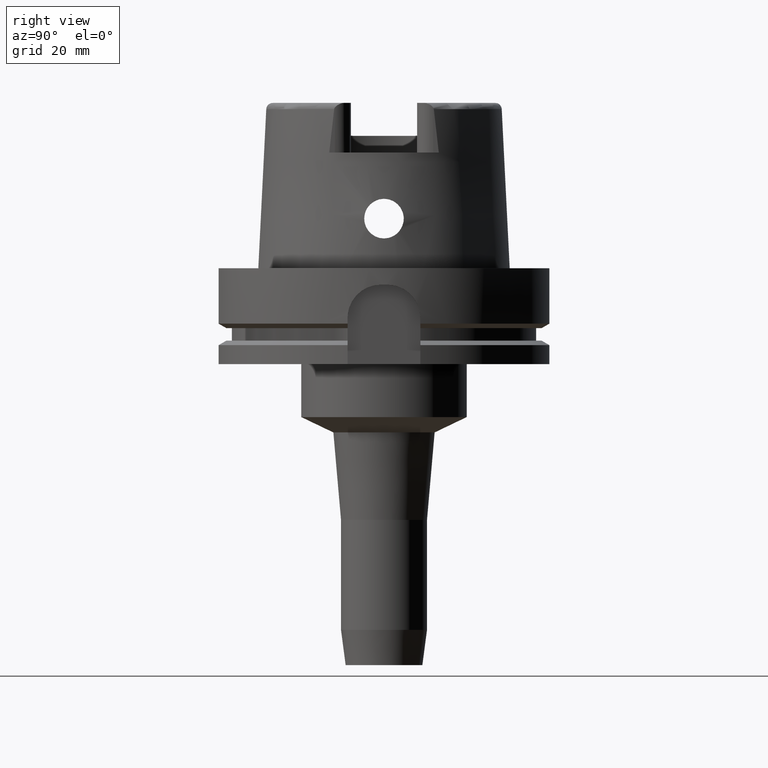
[diagram: clean part render]
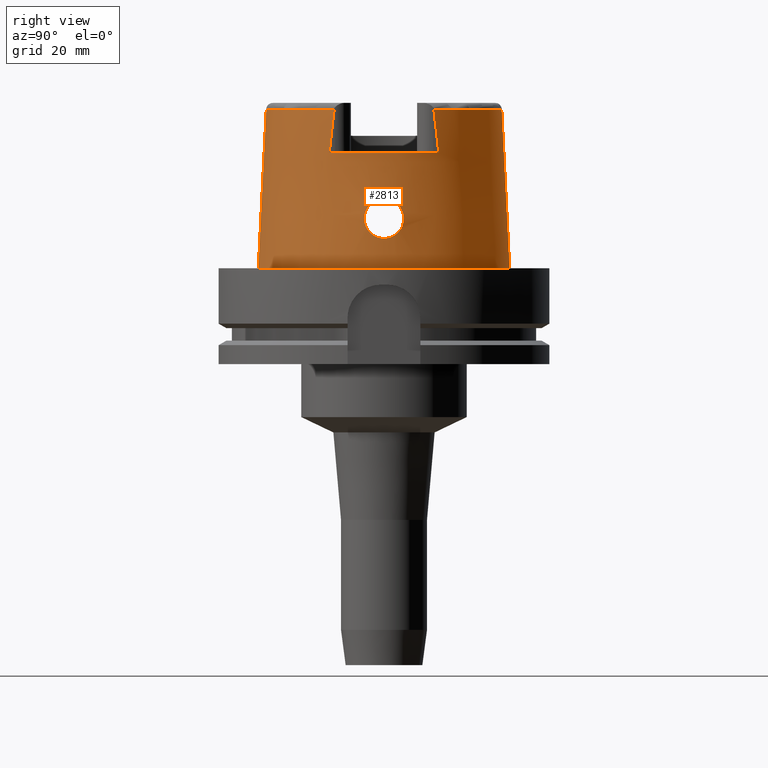
[diagram: same view with one face highlighted and labeled with its STEP entity id]
A machine part, right view. The second image highlights one B-rep face of the part: STEP entity #2813.
In plain terms, the highlighted conical surface has half-angle 2.862 deg.
Its self-contained STEP definition (entity closure, byte-faithful):
#268=CARTESIAN_POINT('',(3.225000552017E1,-1.506439826926E1,4.810004186783E1));
#273=CARTESIAN_POINT('',(0.E0,0.E0,4.809987853799E1));
#274=DIRECTION('',(0.E0,0.E0,-1.E0));
#275=DIRECTION('',(9.060280460805E-1,-4.232176505246E-1,0.E0));
#276=AXIS2_PLACEMENT_3D('',#273,#274,#275);
#299=DIRECTION('',(5.154182075151E-5,-4.993927430816E-2,-9.987522546783E-1));
#300=VECTOR('',#299,4.815996991514E1);
#301=CARTESIAN_POINT('',(-2.482252536761E-3,-3.559494263425E1,
4.809987853799E1));
#302=LINE('',#301,#300);
#356=CARTESIAN_POINT('',(3.224999527489E1,1.655287543599E1,3.5E1));
#357=CARTESIAN_POINT('',(3.224999527489E1,1.639226210430E1,3.646677430492E1));
#358=CARTESIAN_POINT('',(3.224999958003E1,1.606837254300E1,3.939292746286E1));
#359=CARTESIAN_POINT('',(3.225000855756E1,1.557203233594E1,4.375938235548E1));
#360=CARTESIAN_POINT('',(3.224998031234E1,1.523513262735E1,4.665592277280E1));
#361=CARTESIAN_POINT('',(3.224998031234E1,1.506460276146E1,4.809931539854E1));
#366=DIRECTION('',(-5.154182075159E-5,4.993927430816E-2,-9.987522546783E-1));
#367=VECTOR('',#366,4.815996991514E1);
#368=CARTESIAN_POINT('',(2.482252536765E-3,3.559494263425E1,4.809987853799E1));
#369=LINE('',#368,#367);
#373=CARTESIAN_POINT('',(3.225000552017E1,-1.506439826926E1,4.810004186783E1));
#374=CARTESIAN_POINT('',(3.225000552017E1,-1.523503289838E1,4.665577803015E1));
#375=CARTESIAN_POINT('',(3.225000026293E1,-1.557219472580E1,4.376011581149E1));
#376=CARTESIAN_POINT('',(3.224999079948E1,-1.606856473620E1,3.939344259846E1));
#377=CARTESIAN_POINT('',(3.225002129259E1,-1.639212166417E1,3.646699412941E1));
#378=CARTESIAN_POINT('',(3.225002129259E1,-1.655276054267E1,3.5E1));
#383=CARTESIAN_POINT('',(3.694998175923E1,-1.503990973345E-13,2.1E1));
#384=CARTESIAN_POINT('',(3.694998175923E1,-4.817842122100E-1,2.1E1));
#385=CARTESIAN_POINT('',(3.693658907305E1,-1.447753320727E0,2.088312692006E1));
#386=CARTESIAN_POINT('',(3.688193236417E1,-2.818285898086E0,2.036475108654E1));
#387=CARTESIAN_POINT('',(3.680908884292E1,-4.031677684326E0,1.952244537239E1));
#388=CARTESIAN_POINT('',(3.674415281245E1,-4.986593505741E0,1.843931417957E1));
#389=CARTESIAN_POINT('',(3.670915138393E1,-5.665249707465E0,1.714760025777E1));
#390=CARTESIAN_POINT('',(3.672419735718E1,-6.013239142765E0,1.573541009954E1));
#391=CARTESIAN_POINT('',(3.679745115153E1,-6.015180616919E0,1.428398023722E1));
#392=CARTESIAN_POINT('',(3.692397889641E1,-5.673949553563E0,1.287580551498E1));
#393=CARTESIAN_POINT('',(3.708935849107E1,-4.997084807942E0,1.157292247796E1));
#394=CARTESIAN_POINT('',(3.726502144601E1,-4.026614401570E0,1.047153633591E1));
#395=CARTESIAN_POINT('',(3.742070098664E1,-2.810394838383E0,9.631387308986E0));
#396=CARTESIAN_POINT('',(3.752554976740E1,-1.440608429052E0,9.115363102103E0));
#397=CARTESIAN_POINT('',(3.755000165825E1,-4.788980007693E-1,9.E0));
#398=CARTESIAN_POINT('',(3.755000165825E1,0.E0,9.E0));
#403=CARTESIAN_POINT('',(3.755000165825E1,0.E0,9.E0));
#404=CARTESIAN_POINT('',(3.755000165825E1,4.776593658052E-1,9.E0));
#405=CARTESIAN_POINT('',(3.752561877490E1,1.434068920355E0,9.115082196146E0));
#406=CARTESIAN_POINT('',(3.742299728061E1,2.784579881471E0,9.620015242773E0));
#407=CARTESIAN_POINT('',(3.727030961925E1,3.991334373769E0,1.044170482389E1));
#408=CARTESIAN_POINT('',(3.709543215795E1,4.968352152034E0,1.153099991734E1));
#409=CARTESIAN_POINT('',(3.692820236757E1,5.660011376527E0,1.283602179086E1));
#410=CARTESIAN_POINT('',(3.679917222206E1,6.013164776960E0,1.425671415549E1));
#411=CARTESIAN_POINT('',(3.672458181308E1,6.015407952290E0,1.572074170949E1));
#412=CARTESIAN_POINT('',(3.670908807298E1,5.671037322959E0,1.713060683575E1));
#413=CARTESIAN_POINT('',(3.674329414985E1,4.999801806163E0,1.841989533177E1));
#414=CARTESIAN_POINT('',(3.680806493432E1,4.047055841555E0,1.950931127934E1));
#415=CARTESIAN_POINT('',(3.688134915026E1,2.830561210779E0,2.035903952033E1));
#416=CARTESIAN_POINT('',(3.693651563281E1,1.452663510595E0,2.088252964359E1));
#417=CARTESIAN_POINT('',(3.694998175923E1,4.832241074773E-1,2.1E1));
#418=CARTESIAN_POINT('',(3.694998175923E1,-1.503990973345E-13,2.1E1));
#453=CARTESIAN_POINT('',(0.E0,0.E0,3.5E1));
#454=DIRECTION('',(0.E0,0.E0,-1.E0));
#455=DIRECTION('',(8.896561898443E-1,4.566309931135E-1,0.E0));
#456=AXIS2_PLACEMENT_3D('',#453,#454,#455);
#2008=CARTESIAN_POINT('',(0.E0,0.E0,1.023181539495E-12));
#2009=DIRECTION('',(0.E0,0.E0,1.E0));
#2010=DIRECTION('',(0.E0,-1.E0,0.E0));
#2011=AXIS2_PLACEMENT_3D('',#2008,#2009,#2010);
#2220=CARTESIAN_POINT('',(0.E0,0.E0,4.809987853799E1));
#2221=DIRECTION('',(0.E0,0.E0,-1.E0));
#2222=DIRECTION('',(0.E0,1.E0,0.E0));
#2223=AXIS2_PLACEMENT_3D('',#2220,#2221,#2222);
#2306=CARTESIAN_POINT('',(0.E0,3.559494289391E1,4.809987853799E1));
#2307=VERTEX_POINT('',#2306);
#2308=CARTESIAN_POINT('',(3.224994093704E1,1.506456999646E1,4.809987853799E1));
#2309=VERTEX_POINT('',#2308);
#2313=VERTEX_POINT('',#268);
#2314=CARTESIAN_POINT('',(1.065814103640E-14,-3.559494289391E1,
4.809987853799E1));
#2315=VERTEX_POINT('',#2314);
#2316=CARTESIAN_POINT('',(0.E0,-3.800001658252E1,6.821210263297E-13));
#2317=VERTEX_POINT('',#2316);
#2318=CARTESIAN_POINT('',(0.E0,3.800001658252E1,1.023181539495E-12));
#2319=VERTEX_POINT('',#2318);
#2322=CARTESIAN_POINT('',(3.225E1,1.655285457013E1,3.5E1));
#2323=CARTESIAN_POINT('',(3.225E1,-1.655285457013E1,3.5E1));
#2324=VERTEX_POINT('',#2322);
#2325=VERTEX_POINT('',#2323);
#2326=VERTEX_POINT('',#383);
#2327=VERTEX_POINT('',#398);
#2787=CARTESIAN_POINT('',(0.E0,0.E0,2.404993926900E1));
#2788=DIRECTION('',(0.E0,0.E0,-1.E0));
#2789=DIRECTION('',(0.E0,-1.E0,0.E0));
#2790=AXIS2_PLACEMENT_3D('',#2787,#2788,#2789);
#2791=CONICAL_SURFACE('',#2790,3.679747973821E1,2.8625E0);
#2793=ORIENTED_EDGE('',*,*,#2792,.F.);
#2795=ORIENTED_EDGE('',*,*,#2794,.T.);
#2797=ORIENTED_EDGE('',*,*,#2796,.F.);
#2798=ORIENTED_EDGE('',*,*,#2772,.T.);
#2800=ORIENTED_EDGE('',*,*,#2799,.F.);
#2801=ORIENTED_EDGE('',*,*,#2768,.F.);
#2802=ORIENTED_EDGE('',*,*,#2740,.F.);
#2804=ORIENTED_EDGE('',*,*,#2803,.T.);
#2805=EDGE_LOOP('',(#2793,#2795,#2797,#2798,#2800,#2801,#2802,#2804));
#2806=FACE_OUTER_BOUND('',#2805,.F.);
#2808=ORIENTED_EDGE('',*,*,#2807,.T.);
#2810=ORIENTED_EDGE('',*,*,#2809,.T.);
#2811=EDGE_LOOP('',(#2808,#2810));
#2812=FACE_BOUND('',#2811,.F.);
#277=CIRCLE('',#276,3.559494289391E1);
#362=B_SPLINE_CURVE_WITH_KNOTS('',3,(#356,#357,#358,#359,#360,#361),
.UNSPECIFIED.,.F.,.F.,(4,1,1,4),(0.E0,3.333333333333E-1,6.666666666667E-1,1.E0),
.UNSPECIFIED.);
#379=B_SPLINE_CURVE_WITH_KNOTS('',3,(#373,#374,#375,#376,#377,#378),
.UNSPECIFIED.,.F.,.F.,(4,1,1,4),(0.E0,3.333333333333E-1,6.666666666667E-1,1.E0),
.UNSPECIFIED.);
#399=B_SPLINE_CURVE_WITH_KNOTS('',3,(#383,#384,#385,#386,#387,#388,#389,#390,
#391,#392,#393,#394,#395,#396,#397,#398),.UNSPECIFIED.,.F.,.F.,(4,1,1,1,1,1,1,1,
1,1,1,1,1,4),(0.E0,7.692307692308E-2,1.538461538462E-1,2.307692307692E-1,
3.076923076923E-1,3.846153846154E-1,4.615384615385E-1,5.384615384615E-1,
6.153846153846E-1,6.923076923077E-1,7.692307692308E-1,8.461538461538E-1,
9.230769230769E-1,1.E0),.UNSPECIFIED.);
#419=B_SPLINE_CURVE_WITH_KNOTS('',3,(#403,#404,#405,#406,#407,#408,#409,#410,
#411,#412,#413,#414,#415,#416,#417,#418),.UNSPECIFIED.,.F.,.F.,(4,1,1,1,1,1,1,1,
1,1,1,1,1,4),(0.E0,7.692307692308E-2,1.538461538462E-1,2.307692307692E-1,
3.076923076923E-1,3.846153846154E-1,4.615384615385E-1,5.384615384615E-1,
6.153846153846E-1,6.923076923077E-1,7.692307692308E-1,8.461538461538E-1,
9.230769230769E-1,1.E0),.UNSPECIFIED.);
#457=CIRCLE('',#456,3.624995854370E1);
#2012=CIRCLE('',#2011,3.800001658252E1);
#2224=CIRCLE('',#2223,3.559494289391E1);
#2740=EDGE_CURVE('',#2313,#2315,#277,.T.);
#2768=EDGE_CURVE('',#2315,#2317,#302,.T.);
#2772=EDGE_CURVE('',#2307,#2319,#369,.T.);
#2792=EDGE_CURVE('',#2324,#2325,#457,.T.);
#2794=EDGE_CURVE('',#2324,#2309,#362,.T.);
#2796=EDGE_CURVE('',#2307,#2309,#2224,.T.);
#2799=EDGE_CURVE('',#2317,#2319,#2012,.T.);
#2803=EDGE_CURVE('',#2313,#2325,#379,.T.);
#2807=EDGE_CURVE('',#2326,#2327,#399,.T.);
#2809=EDGE_CURVE('',#2327,#2326,#419,.T.);
#2813=ADVANCED_FACE('',(#2806,#2812),#2791,.T.);